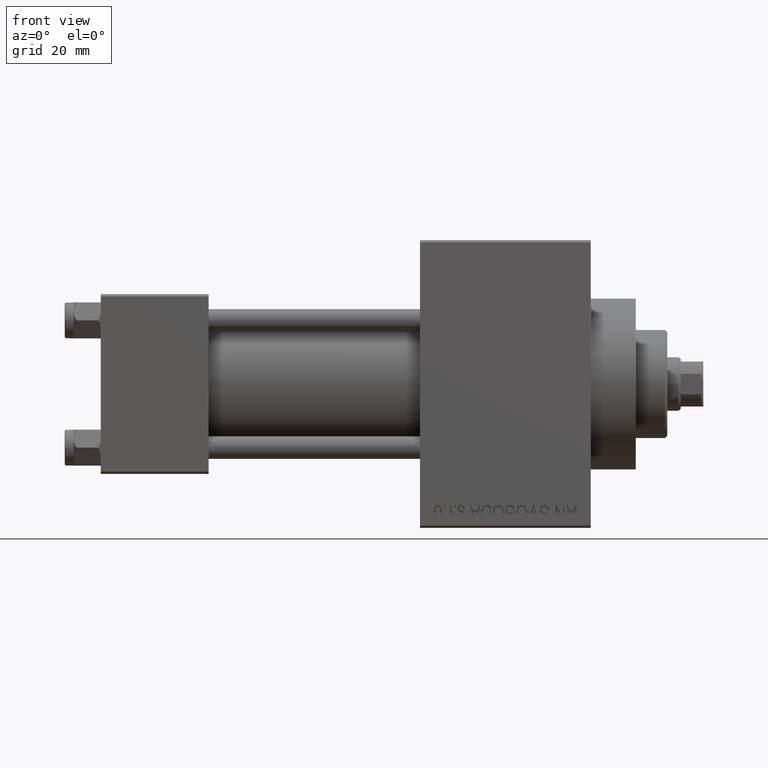
[diagram: clean part render]
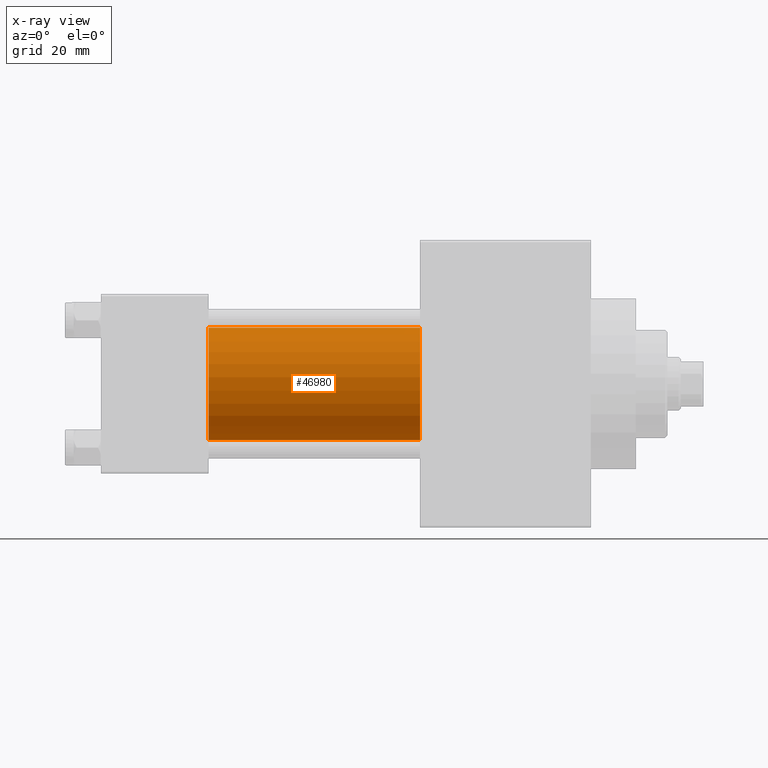
[diagram: x-ray — body ghosted, one internal face saturated and labeled with its STEP entity id]
A machine part, front view, then the same camera in x-ray: the body is ghosted and one INTERNAL B-rep face — a face not visible from any outside direction — is saturated and labeled: STEP entity #46980.
In plain terms, the highlighted cylindrical surface (partial cylindrical patch) has radius 12.5 mm, axis along (-1, -0, -0).
Its self-contained STEP definition (entity closure, byte-faithful):
#1866 = CIRCLE ( 'NONE', #48014, 12.49999999999999645 ) ;
#7399 = EDGE_CURVE ( 'NONE', #18918, #47987, #33439, .T. ) ;
#7698 = ORIENTED_EDGE ( 'NONE', *, *, #36685, .F. ) ;
#9780 = DIRECTION ( 'NONE',  ( -1.000000000000000000, -0.000000000000000000, -0.000000000000000000 ) ) ;
#13138 = EDGE_LOOP ( 'NONE', ( #39004, #43306, #16189, #7698 ) ) ;
#14798 = VECTOR ( 'NONE', #9780, 1000.000000000000000 ) ;
#16189 = ORIENTED_EDGE ( 'NONE', *, *, #46740, .F. ) ;
#17491 = LINE ( 'NONE', #17744, #37362 ) ;
#17697 = CARTESIAN_POINT ( 'NONE',  ( 24.00000000000000000, -2.602085213965210642E-15, 0.000000000000000000 ) ) ;
#17744 = CARTESIAN_POINT ( 'NONE',  ( 71.00000000000001421, -2.602085213965210642E-15, 12.49999999999999645 ) ) ;
#18918 = VERTEX_POINT ( 'NONE', #38899 ) ;
#19635 = FACE_OUTER_BOUND ( 'NONE', #13138, .T. ) ;
#23444 = CARTESIAN_POINT ( 'NONE',  ( 71.00000000000001421, -1.071276715031019515E-15, -12.49999999999999645 ) ) ;
#24254 = EDGE_CURVE ( 'NONE', #47987, #34074, #27958, .T. ) ;
#24670 = DIRECTION ( 'NONE',  ( 1.000000000000000000, 0.000000000000000000, 0.000000000000000000 ) ) ;
#26636 = DIRECTION ( 'NONE',  ( -1.000000000000000000, -0.000000000000000000, -0.000000000000000000 ) ) ;
#27958 = LINE ( 'NONE', #47145, #14798 ) ;
#32387 = DIRECTION ( 'NONE',  ( 0.000000000000000000, 0.000000000000000000, -1.000000000000000000 ) ) ;
#33439 = CIRCLE ( 'NONE', #34967, 12.49999999999999645 ) ;
#33694 = AXIS2_PLACEMENT_3D ( 'NONE', #38808, #26636, #34831 ) ;
#33863 = CARTESIAN_POINT ( 'NONE',  ( 24.00000000000000000, -1.071276715031019515E-15, -12.49999999999999645 ) ) ;
#34074 = VERTEX_POINT ( 'NONE', #33863 ) ;
#34831 = DIRECTION ( 'NONE',  ( 0.000000000000000000, 0.000000000000000000, 1.000000000000000000 ) ) ;
#34967 = AXIS2_PLACEMENT_3D ( 'NONE', #48145, #37171, #46706 ) ;
#36685 = EDGE_CURVE ( 'NONE', #18918, #39067, #17491, .T. ) ;
#37171 = DIRECTION ( 'NONE',  ( 1.000000000000000000, 0.000000000000000000, 0.000000000000000000 ) ) ;
#37362 = VECTOR ( 'NONE', #40390, 1000.000000000000000 ) ;
#38808 = CARTESIAN_POINT ( 'NONE',  ( 71.00000000000001421, -2.602085213965210642E-15, 0.000000000000000000 ) ) ;
#38899 = CARTESIAN_POINT ( 'NONE',  ( 71.00000000000001421, -2.602085213965210642E-15, 12.49999999999999645 ) ) ;
#39004 = ORIENTED_EDGE ( 'NONE', *, *, #7399, .T. ) ;
#39067 = VERTEX_POINT ( 'NONE', #40482 ) ;
#40390 = DIRECTION ( 'NONE',  ( -1.000000000000000000, -0.000000000000000000, -0.000000000000000000 ) ) ;
#40482 = CARTESIAN_POINT ( 'NONE',  ( 24.00000000000000000, -2.602085213965210642E-15, 12.49999999999999645 ) ) ;
#42321 = CYLINDRICAL_SURFACE ( 'NONE', #33694, 12.49999999999999645 ) ;
#43306 = ORIENTED_EDGE ( 'NONE', *, *, #24254, .T. ) ;
#46706 = DIRECTION ( 'NONE',  ( 0.000000000000000000, 0.000000000000000000, -1.000000000000000000 ) ) ;
#46740 = EDGE_CURVE ( 'NONE', #39067, #34074, #1866, .T. ) ;
#46980 = ADVANCED_FACE ( 'NONE', ( #19635 ), #42321, .F. ) ;
#47145 = CARTESIAN_POINT ( 'NONE',  ( 71.00000000000001421, -1.071276715031019515E-15, -12.49999999999999645 ) ) ;
#47987 = VERTEX_POINT ( 'NONE', #23444 ) ;
#48014 = AXIS2_PLACEMENT_3D ( 'NONE', #17697, #24670, #32387 ) ;
#48145 = CARTESIAN_POINT ( 'NONE',  ( 71.00000000000001421, -2.602085213965210642E-15, 0.000000000000000000 ) ) ;